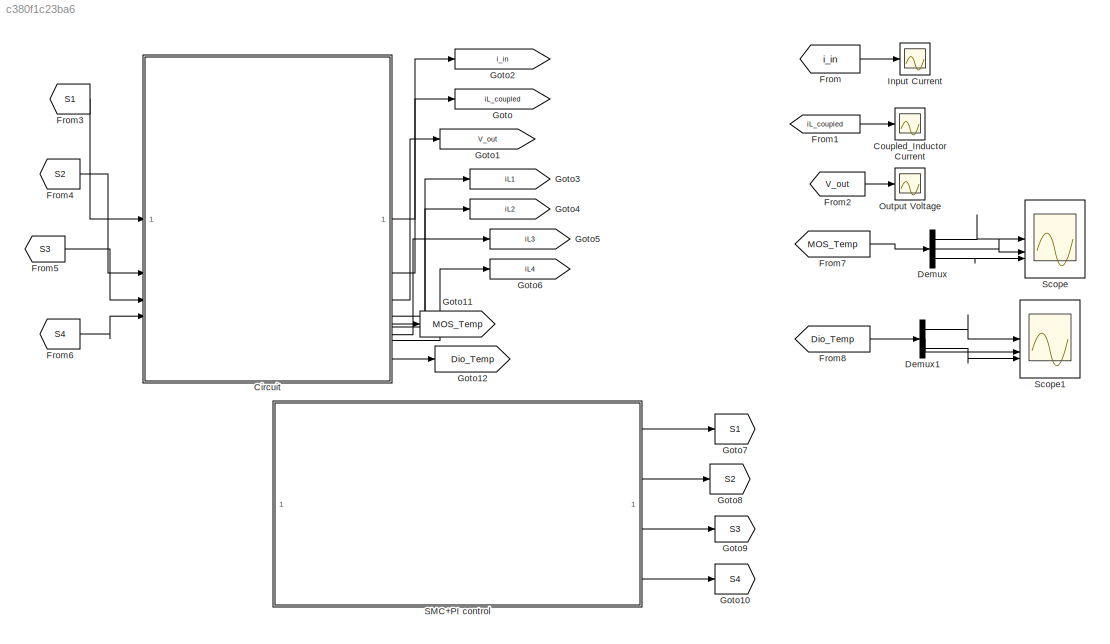
MODEL slx_c380f1c23ba6
KIND model
CONFIG AbsTol = auto
CONFIG EnableMultiTasking = off
CONFIG FixedStep = auto
CONFIG MaxStep = auto
CONFIG MinStep = auto
CONFIG RelTol = 1e-3
CONFIG SampleTimeConstraint = Unconstrained
CONFIG SolverName = ode1
CONFIG StartTime = 0.0
CONFIG StopTime = 10
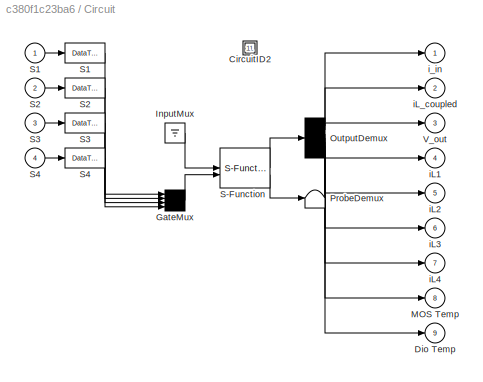
BLOCK [SubSystem] Circuit
  CopyFcn = plecs('sl', 203);
  DeleteFcn = plecs('sl', 205);
  DestroyFcn = plecs('sl', 207);
  ErrorFcn = plerrorfcn
  InitFcn = plecs('sl', 214);
  LoadFcn = plecs('sl', 200);
  NameChangeFcn = plecs('sl', 210);
  OpenFcn = plecs('sl', 202);
  PostSaveFcn = plecs('sl', 201);
  PreCopyFcn = plecs('sl', 216);
  PreSaveFcn = plecs('sl', 211);
  ShowPortLabels = FromPortBlockName
  StartFcn = plecs('sl', 208);
  StopFcn = plecs('sl', 209);
  UndoDeleteFcn = plecs('sl', 206);
BLOCK [SubSystem] Circuit/ CircuitID2 
BLOCK [Mux] Circuit/ GateMux 
  Inputs = [ 1 1 1 1 ]
BLOCK [Ground] Circuit/ InputMux 
BLOCK [Demux] Circuit/ OutputDemux 
  Outputs = [ 1 4 1 1 1 1 1 3 3 ]
BLOCK [Terminator] Circuit/ ProbeDemux 
BLOCK [S-Function] Circuit/ S-Function 
  EnableBusSupport = off
  FunctionName = plecs
  SFcnIsStateOwnerBlock = off
  SFunctionDeploymentMode = off
BLOCK [DataTypeConversion] Circuit/ S1 
BLOCK [DataTypeConversion] Circuit/ S2 
BLOCK [DataTypeConversion] Circuit/ S3 
BLOCK [DataTypeConversion] Circuit/ S4 
BLOCK [Outport] Circuit/Dio Temp
  Port = 9
  PortDimensions = 3
BLOCK [Outport] Circuit/MOS Temp
  Port = 8
  PortDimensions = 3
BLOCK [Inport] Circuit/S1
  PortDimensions = 1
BLOCK [Inport] Circuit/S2
  Port = 2
  PortDimensions = 1
BLOCK [Inport] Circuit/S3
  Port = 3
  PortDimensions = 1
BLOCK [Inport] Circuit/S4
  Port = 4
  PortDimensions = 1
BLOCK [Outport] Circuit/V_out
  Port = 3
  PortDimensions = 1
BLOCK [Outport] Circuit/iL1
  Port = 4
  PortDimensions = 1
BLOCK [Outport] Circuit/iL2
  Port = 5
  PortDimensions = 1
BLOCK [Outport] Circuit/iL3
  Port = 6
  PortDimensions = 1
BLOCK [Outport] Circuit/iL4
  Port = 7
  PortDimensions = 1
BLOCK [Outport] Circuit/iL_coupled
  Port = 2
  PortDimensions = 4
BLOCK [Outport] Circuit/i_in
  PortDimensions = 1
BLOCK [Scope] Coupled_Inductor Current
  Floating = off
  NumInputPorts = 1
  ScopeSpecificationString = Simulink.scopes.TimeScopeBlockCfg('CurrentConfiguration', extmgr.ConfigurationSet(extmgr.Configuration('Core','General UI',true),extmgr.Configuration('Core','Source UI',true),extmgr.Configuration('Sources','WiredSimulink',true,'DataLogging',true,'DataLoggingVariableName','ScopeData1','DataLoggingSaveFormat','StructureWithTime'),extmgr.Configuration('Visuals','Time Domain',true,'SerializedDisplays'...<+1573ch>
BLOCK [Demux] Demux
  Outputs = 3
BLOCK [Demux] Demux1
  Outputs = 3
BLOCK [From] From
  GotoTag = i_in
  TagVisibility = global
BLOCK [From] From1
  GotoTag = iL_coupled
  TagVisibility = global
BLOCK [From] From2
  GotoTag = V_out
  TagVisibility = global
BLOCK [From] From3
  GotoTag = S1
  TagVisibility = global
BLOCK [From] From4
  GotoTag = S2
  TagVisibility = global
BLOCK [From] From5
  GotoTag = S3
  TagVisibility = global
BLOCK [From] From6
  GotoTag = S4
  TagVisibility = global
BLOCK [From] From7
  GotoTag = MOS_Temp
  TagVisibility = global
BLOCK [From] From8
  GotoTag = Dio_Temp
  TagVisibility = global
BLOCK [Goto] Goto
  GotoTag = iL_coupled
  TagVisibility = global
BLOCK [Goto] Goto1
  GotoTag = V_out
  TagVisibility = global
BLOCK [Goto] Goto10
  GotoTag = S4
  TagVisibility = global
BLOCK [Goto] Goto11
  GotoTag = MOS_Temp
  TagVisibility = global
BLOCK [Goto] Goto12
  GotoTag = Dio_Temp
  TagVisibility = global
BLOCK [Goto] Goto2
  GotoTag = i_in
  TagVisibility = global
BLOCK [Goto] Goto3
  GotoTag = iL1
  TagVisibility = global
BLOCK [Goto] Goto4
  GotoTag = iL2
  TagVisibility = global
BLOCK [Goto] Goto5
  GotoTag = iL3
  TagVisibility = global
BLOCK [Goto] Goto6
  GotoTag = iL4
  NameLocation = top
  TagVisibility = global
BLOCK [Goto] Goto7
  GotoTag = S1
  TagVisibility = global
BLOCK [Goto] Goto8
  GotoTag = S2
  TagVisibility = global
BLOCK [Goto] Goto9
  GotoTag = S3
  TagVisibility = global
BLOCK [Scope] Input Current
  Floating = off
  NumInputPorts = 1
  ScopeSpecificationString = Simulink.scopes.TimeScopeBlockCfg('CurrentConfiguration', extmgr.ConfigurationSet(extmgr.Configuration('Core','General UI',true),extmgr.Configuration('Core','Source UI',true),extmgr.Configuration('Sources','WiredSimulink',true,'DataLogging',true,'DataLoggingVariableName','ScopeData2','DataLoggingSaveFormat','StructureWithTime'),extmgr.Configuration('Visuals','Time Domain',true,'SerializedDisplays'...<+1489ch>
BLOCK [Scope] Output Voltage
  Floating = off
  NumInputPorts = 1
  ScopeSpecificationString = Simulink.scopes.TimeScopeBlockCfg('CurrentConfiguration', extmgr.ConfigurationSet(extmgr.Configuration('Core','General UI',true),extmgr.Configuration('Core','Source UI',true),extmgr.Configuration('Sources','WiredSimulink',true,'DataLogging',true,'DataLoggingSaveFormat','StructureWithTime'),extmgr.Configuration('Visuals','Time Domain',true,'SerializedDisplays',{struct('MinYLimReal','-6.19331','MaxY...<+2107ch>
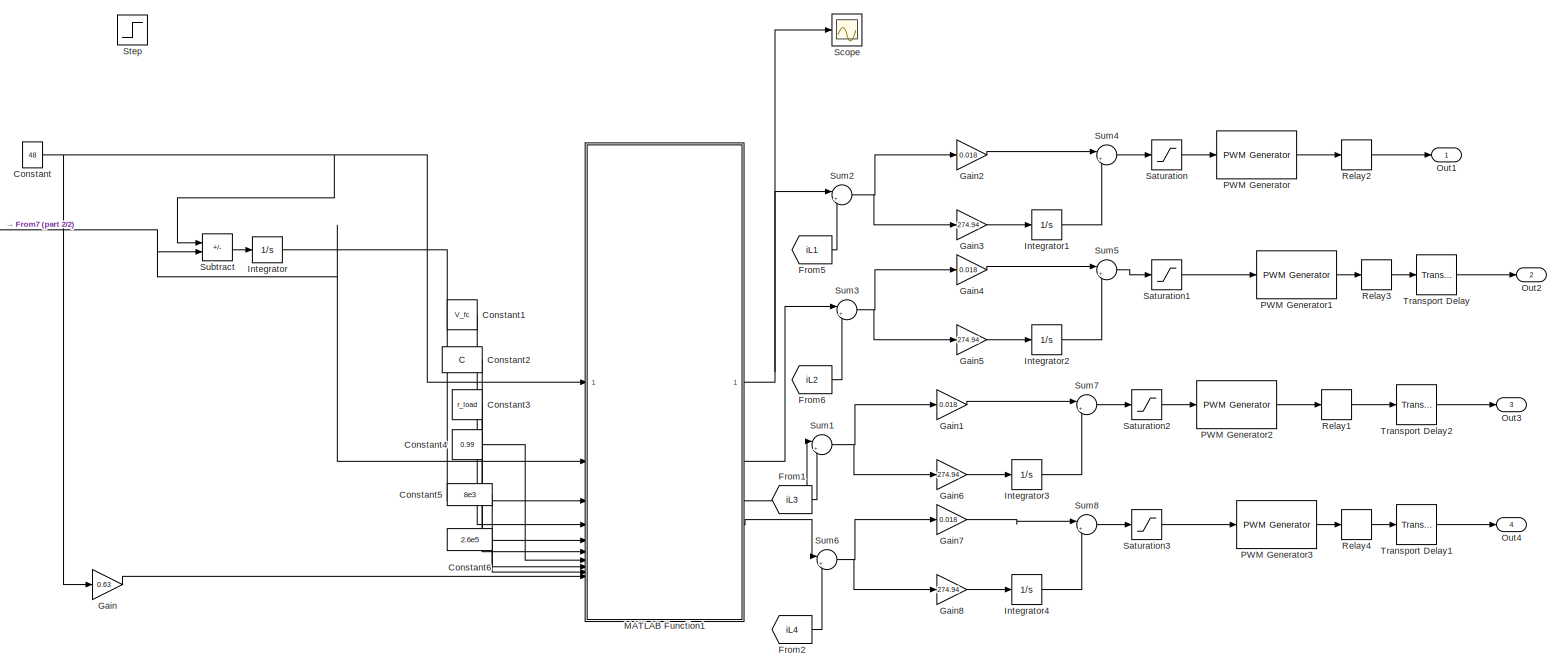
[diagram: SMC+PI control - part 1/2, most of the canvas]
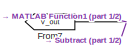
[diagram: SMC+PI control - part 2/2, middle left region]
BLOCK [SubSystem] SMC+PI control
BLOCK [Constant] SMC+PI control/Constant
  Value = 48
BLOCK [Constant] SMC+PI control/Constant1
  Value = V_fc
BLOCK [Constant] SMC+PI control/Constant2
  Value = C
BLOCK [Constant] SMC+PI control/Constant3
  Value = r_load
BLOCK [Constant] SMC+PI control/Constant4
  Value = 0.99
BLOCK [Constant] SMC+PI control/Constant5
  Value = 8e3
BLOCK [Constant] SMC+PI control/Constant6
  Value = 2.6e5
BLOCK [From] SMC+PI control/From1
  GotoTag = iL3
  TagVisibility = global
BLOCK [From] SMC+PI control/From2
  GotoTag = iL4
  TagVisibility = global
BLOCK [From] SMC+PI control/From5
  GotoTag = iL1
  TagVisibility = global
BLOCK [From] SMC+PI control/From6
  GotoTag = iL2
  TagVisibility = global
BLOCK [From] SMC+PI control/From7
  GotoTag = V_out
  TagVisibility = global
BLOCK [Gain] SMC+PI control/Gain
  Gain = 0.63
BLOCK [Gain] SMC+PI control/Gain1
  Gain = 0.018
BLOCK [Gain] SMC+PI control/Gain2
  Gain = 0.018
BLOCK [Gain] SMC+PI control/Gain3
  Gain = 274.94
BLOCK [Gain] SMC+PI control/Gain4
  Gain = 0.018
BLOCK [Gain] SMC+PI control/Gain5
  Gain = 274.94
BLOCK [Gain] SMC+PI control/Gain6
  Gain = 274.94
BLOCK [Gain] SMC+PI control/Gain7
  Gain = 0.018
BLOCK [Gain] SMC+PI control/Gain8
  Gain = 274.94
BLOCK [Integrator] SMC+PI control/Integrator
BLOCK [Integrator] SMC+PI control/Integrator1
BLOCK [Integrator] SMC+PI control/Integrator2
BLOCK [Integrator] SMC+PI control/Integrator3
BLOCK [Integrator] SMC+PI control/Integrator4
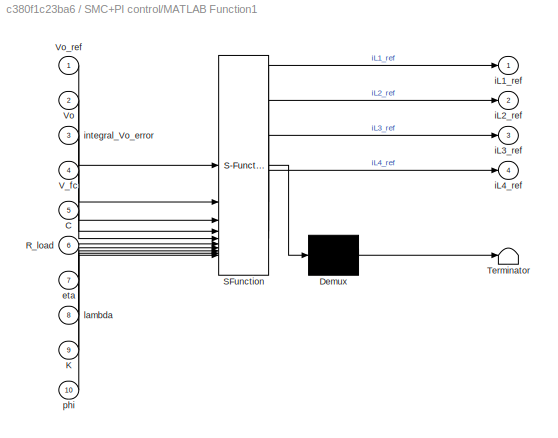
BLOCK [SubSystem] SMC+PI control/MATLAB Function1
  ErrorFcn = Stateflow.Translate.translate
  PermitHierarchicalResolution = ExplicitOnly
  SFBlockType = MATLAB Function
  TreatAsAtomicUnit = on
BLOCK [Demux] SMC+PI control/MATLAB Function1/ Demux 
  Outputs = 1
BLOCK [S-Function] SMC+PI control/MATLAB Function1/ SFunction 
  EnableBusSupport = on
  FunctionName = sf_sfun
  PortCounts = [10 5]
  SFcnIsStateOwnerBlock = off
  SFunctionDeploymentMode = off
  Tag = Stateflow S-Function 1
BLOCK [Terminator] SMC+PI control/MATLAB Function1/ Terminator 
BLOCK [Inport] SMC+PI control/MATLAB Function1/C
  Port = 5
BLOCK [Inport] SMC+PI control/MATLAB Function1/K
  Port = 9
BLOCK [Inport] SMC+PI control/MATLAB Function1/R_load
  Port = 6
BLOCK [Inport] SMC+PI control/MATLAB Function1/V_fc
  Port = 4
BLOCK [Inport] SMC+PI control/MATLAB Function1/Vo
  Port = 2
BLOCK [Inport] SMC+PI control/MATLAB Function1/Vo_ref
BLOCK [Inport] SMC+PI control/MATLAB Function1/eta
  Port = 7
BLOCK [Outport] SMC+PI control/MATLAB Function1/iL1_ref
BLOCK [Outport] SMC+PI control/MATLAB Function1/iL2_ref
  Port = 2
BLOCK [Outport] SMC+PI control/MATLAB Function1/iL3_ref
  Port = 3
BLOCK [Outport] SMC+PI control/MATLAB Function1/iL4_ref
  Port = 4
BLOCK [Inport] SMC+PI control/MATLAB Function1/integral_Vo_error
  Port = 3
BLOCK [Inport] SMC+PI control/MATLAB Function1/lambda
  Port = 8
BLOCK [Inport] SMC+PI control/MATLAB Function1/phi
  Port = 10
BLOCK [Outport] SMC+PI control/Out1
BLOCK [Outport] SMC+PI control/Out2
  Port = 2
BLOCK [Outport] SMC+PI control/Out3
  Port = 3
BLOCK [Outport] SMC+PI control/Out4
  Port = 4
BLOCK [Reference] SMC+PI control/PWM Generator  REF=eePwmGenerator/PWM Generator
  SourceBlock = eePwmGenerator/PWM Generator
  SourceType = PWM Generator
BLOCK [Reference] SMC+PI control/PWM Generator1  REF=eePwmGenerator/PWM Generator
  SourceBlock = eePwmGenerator/PWM Generator
  SourceType = PWM Generator
BLOCK [Reference] SMC+PI control/PWM Generator2  REF=eePwmGenerator/PWM Generator
  SourceBlock = eePwmGenerator/PWM Generator
  SourceType = PWM Generator
BLOCK [Reference] SMC+PI control/PWM Generator3  REF=eePwmGenerator/PWM Generator
  SourceBlock = eePwmGenerator/PWM Generator
  SourceType = PWM Generator
BLOCK [Relay] SMC+PI control/Relay1
BLOCK [Relay] SMC+PI control/Relay2
BLOCK [Relay] SMC+PI control/Relay3
BLOCK [Relay] SMC+PI control/Relay4
BLOCK [Saturate] SMC+PI control/Saturation
  LowerLimit = 0.1
  UpperLimit = 0.97
BLOCK [Saturate] SMC+PI control/Saturation1
  LowerLimit = 0.1
  UpperLimit = 0.97
BLOCK [Saturate] SMC+PI control/Saturation2
  LowerLimit = 0.1
  UpperLimit = 0.97
BLOCK [Saturate] SMC+PI control/Saturation3
  LowerLimit = 0.1
  UpperLimit = 0.97
BLOCK [Scope] SMC+PI control/Scope
  Floating = off
  NumInputPorts = 1
  ScopeSpecificationString = Simulink.scopes.TimeScopeBlockCfg('CurrentConfiguration', extmgr.ConfigurationSet(extmgr.Configuration('Core','General UI',true),extmgr.Configuration('Core','Source UI',true),extmgr.Configuration('Sources','WiredSimulink',true,'DataLoggingVariableName','ScopeData4'),extmgr.Configuration('Visuals','Time Domain',true,'SerializedDisplays',{struct('MinYLimReal','8.9447','MaxYLimReal','27.82937','YLabe...<+1481ch>
BLOCK [Step] SMC+PI control/Step
  After = 40
  Before = 48
  Commented = on
  SampleTime = 0
  Time = 5
BLOCK [Sum] SMC+PI control/Subtract
  IconShape = rectangular
  Inputs = +-
BLOCK [Sum] SMC+PI control/Sum1
  Inputs = |+-
BLOCK [Sum] SMC+PI control/Sum2
  Inputs = |+-
BLOCK [Sum] SMC+PI control/Sum3
  Inputs = |+-
BLOCK [Sum] SMC+PI control/Sum4
  Inputs = |++
BLOCK [Sum] SMC+PI control/Sum5
  Inputs = |++
BLOCK [Sum] SMC+PI control/Sum6
  Inputs = |+-
BLOCK [Sum] SMC+PI control/Sum7
  Inputs = |++
BLOCK [Sum] SMC+PI control/Sum8
  Inputs = |++
BLOCK [TransportDelay] SMC+PI control/Transport Delay
  DelayTime = 5e-6
BLOCK [TransportDelay] SMC+PI control/Transport Delay1
  DelayTime = 1.5e-5
BLOCK [TransportDelay] SMC+PI control/Transport Delay2
  DelayTime = 1e-5
BLOCK [Scope] Scope
  Floating = off
  NumInputPorts = 3
  ScopeSpecificationString = Simulink.scopes.TimeScopeBlockCfg('CurrentConfiguration', extmgr.ConfigurationSet(extmgr.Configuration('Core','General UI',true),extmgr.Configuration('Core','Source UI',true),extmgr.Configuration('Sources','WiredSimulink',true,'DataLoggingVariableName','MosTemp','DataLogging',true,'DataLoggingSaveFormat','StructureWithTime'),extmgr.Configuration('Visuals','Time Domain',true,'SerializedDisplays',{s...<+3149ch>
BLOCK [Scope] Scope1
  Floating = off
  NumInputPorts = 3
  ScopeSpecificationString = Simulink.scopes.TimeScopeBlockCfg('CurrentConfiguration', extmgr.ConfigurationSet(extmgr.Configuration('Core','General UI',true),extmgr.Configuration('Core','Source UI',true),extmgr.Configuration('Sources','WiredSimulink',true,'DataLoggingVariableName','DioTemp','DataLogging',true,'DataLoggingSaveFormat','StructureWithTime'),extmgr.Configuration('Visuals','Time Domain',true,'SerializedDisplays',{s...<+3129ch>
LINE Circuit:1 -> Goto2:1
LINE Circuit:2 -> Goto:1
LINE Circuit:3 -> Goto1:1
LINE Circuit:4 -> Goto3:1
LINE Circuit:5 -> Goto4:1
LINE Circuit:6 -> Goto5:1
LINE Circuit:7 -> Goto6:1
LINE Circuit:8 -> Goto11:1
LINE Circuit:9 -> Goto12:1
LINE Demux1:1 -> Scope1:1
LINE Demux1:2 -> Scope1:2
LINE Demux1:3 -> Scope1:3
LINE Demux:1 -> Scope:1
LINE Demux:2 -> Scope:2
LINE Demux:3 -> Scope:3
LINE From1:1 -> Coupled_Inductor Current:1
LINE From2:1 -> Output Voltage:1
LINE From3:1 -> Circuit:1
LINE From4:1 -> Circuit:2
LINE From5:1 -> Circuit:3
LINE From6:1 -> Circuit:4
LINE From7:1 -> Demux:1
LINE From8:1 -> Demux1:1
LINE From:1 -> Input Current:1
LINE SMC+PI control/Constant1:1 -> SMC+PI control/MATLAB Function1:4
LINE SMC+PI control/Constant2:1 -> SMC+PI control/MATLAB Function1:5
LINE SMC+PI control/Constant3:1 -> SMC+PI control/MATLAB Function1:6
LINE SMC+PI control/Constant4:1 -> SMC+PI control/MATLAB Function1:7
LINE SMC+PI control/Constant5:1 -> SMC+PI control/MATLAB Function1:8
LINE SMC+PI control/Constant6:1 -> SMC+PI control/MATLAB Function1:9
NET SMC+PI control/Constant:1 -> SMC+PI control/Gain:1, SMC+PI control/MATLAB Function1:1, SMC+PI control/Subtract:1
LINE SMC+PI control/From1:1 -> SMC+PI control/Sum1:2
LINE SMC+PI control/From2:1 -> SMC+PI control/Sum6:2
LINE SMC+PI control/From5:1 -> SMC+PI control/Sum2:2
LINE SMC+PI control/From6:1 -> SMC+PI control/Sum3:2
NET SMC+PI control/From7:1 -> SMC+PI control/MATLAB Function1:2, SMC+PI control/Subtract:2
LINE SMC+PI control/Gain1:1 -> SMC+PI control/Sum7:1
LINE SMC+PI control/Gain2:1 -> SMC+PI control/Sum4:1
LINE SMC+PI control/Gain3:1 -> SMC+PI control/Integrator1:1
LINE SMC+PI control/Gain4:1 -> SMC+PI control/Sum5:1
LINE SMC+PI control/Gain5:1 -> SMC+PI control/Integrator2:1
LINE SMC+PI control/Gain6:1 -> SMC+PI control/Integrator3:1
LINE SMC+PI control/Gain7:1 -> SMC+PI control/Sum8:1
LINE SMC+PI control/Gain8:1 -> SMC+PI control/Integrator4:1
LINE SMC+PI control/Gain:1 -> SMC+PI control/MATLAB Function1:10
LINE SMC+PI control/Integrator1:1 -> SMC+PI control/Sum4:2
LINE SMC+PI control/Integrator2:1 -> SMC+PI control/Sum5:2
LINE SMC+PI control/Integrator3:1 -> SMC+PI control/Sum7:2
LINE SMC+PI control/Integrator4:1 -> SMC+PI control/Sum8:2
LINE SMC+PI control/Integrator:1 -> SMC+PI control/MATLAB Function1:3
NET SMC+PI control/MATLAB Function1:1 -> SMC+PI control/Scope:1, SMC+PI control/Sum2:1
LINE SMC+PI control/MATLAB Function1:2 -> SMC+PI control/Sum3:1
LINE SMC+PI control/MATLAB Function1:3 -> SMC+PI control/Sum1:1
LINE SMC+PI control/MATLAB Function1:4 -> SMC+PI control/Sum6:1
LINE SMC+PI control/PWM Generator1:1 -> SMC+PI control/Relay3:1
LINE SMC+PI control/PWM Generator2:1 -> SMC+PI control/Relay1:1
LINE SMC+PI control/PWM Generator3:1 -> SMC+PI control/Relay4:1
LINE SMC+PI control/PWM Generator:1 -> SMC+PI control/Relay2:1
LINE SMC+PI control/Relay1:1 -> SMC+PI control/Transport Delay2:1
LINE SMC+PI control/Relay2:1 -> SMC+PI control/Out1:1
LINE SMC+PI control/Relay3:1 -> SMC+PI control/Transport Delay:1
LINE SMC+PI control/Relay4:1 -> SMC+PI control/Transport Delay1:1
LINE SMC+PI control/Saturation1:1 -> SMC+PI control/PWM Generator1:1
LINE SMC+PI control/Saturation2:1 -> SMC+PI control/PWM Generator2:1
LINE SMC+PI control/Saturation3:1 -> SMC+PI control/PWM Generator3:1
LINE SMC+PI control/Saturation:1 -> SMC+PI control/PWM Generator:1
LINE SMC+PI control/Subtract:1 -> SMC+PI control/Integrator:1
NET SMC+PI control/Sum1:1 -> SMC+PI control/Gain1:1, SMC+PI control/Gain6:1
NET SMC+PI control/Sum2:1 -> SMC+PI control/Gain2:1, SMC+PI control/Gain3:1
NET SMC+PI control/Sum3:1 -> SMC+PI control/Gain4:1, SMC+PI control/Gain5:1
LINE SMC+PI control/Sum4:1 -> SMC+PI control/Saturation:1
LINE SMC+PI control/Sum5:1 -> SMC+PI control/Saturation1:1
NET SMC+PI control/Sum6:1 -> SMC+PI control/Gain7:1, SMC+PI control/Gain8:1
LINE SMC+PI control/Sum7:1 -> SMC+PI control/Saturation2:1
LINE SMC+PI control/Sum8:1 -> SMC+PI control/Saturation3:1
LINE SMC+PI control/Transport Delay1:1 -> SMC+PI control/Out4:1
LINE SMC+PI control/Transport Delay2:1 -> SMC+PI control/Out3:1
LINE SMC+PI control/Transport Delay:1 -> SMC+PI control/Out2:1
LINE SMC+PI control:1 -> Goto7:1
LINE SMC+PI control:2 -> Goto8:1
LINE SMC+PI control:3 -> Goto9:1
LINE SMC+PI control:4 -> Goto10:1
note: NET lines group one-source signal fan-out (src -> all destinations, sorted); 1:1 wires keep LINE
CHART SMC+PI control/MATLAB Function1 states=1 transitions=1
  STATE_LABEL 'eML_blk_kernel()'
  STATE_LABEL 'SCRIPT:\nfunction [iL1_ref, iL2_ref, iL3_ref, iL4_ref] = Outer_SMC(Vo_ref, Vo, integral_Vo_error, V_fc, C, R_load, eta, lambda, K, phi)\n    %% System Parameters (Optimized for ±0.5V Error)\n%     V_fc = 14.4;          % Input voltage [V] (measured under load)\n%     C = 100e-6;          % Output capacitance [F] \n%     R_load = 5;          % Load resistance [Ω] (48V/500W = 4.608Ω, adjust if needed)\n% ...<+1251ch>'
CHART  states=0 transitions=0
